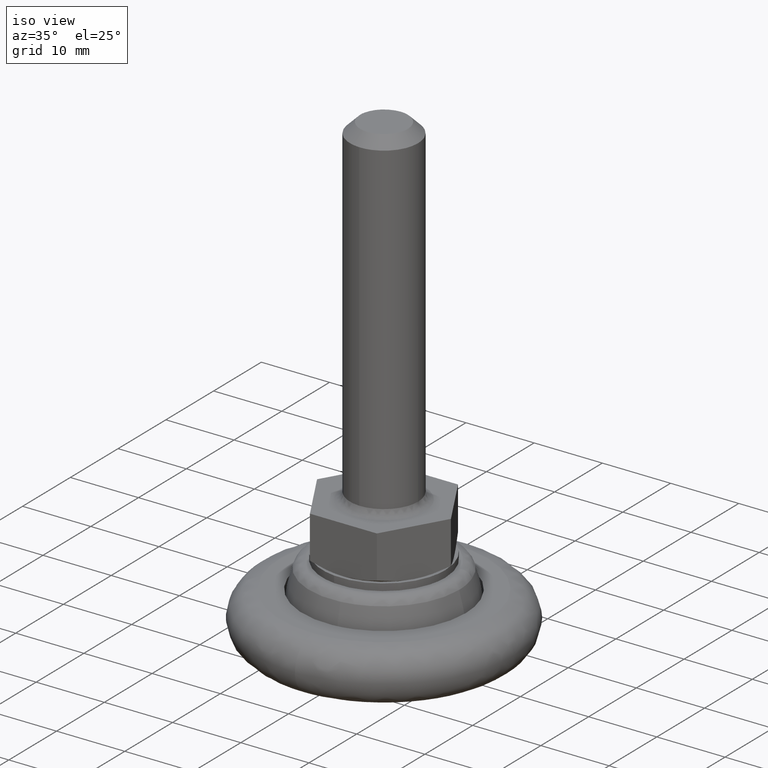
[diagram: clean part render]
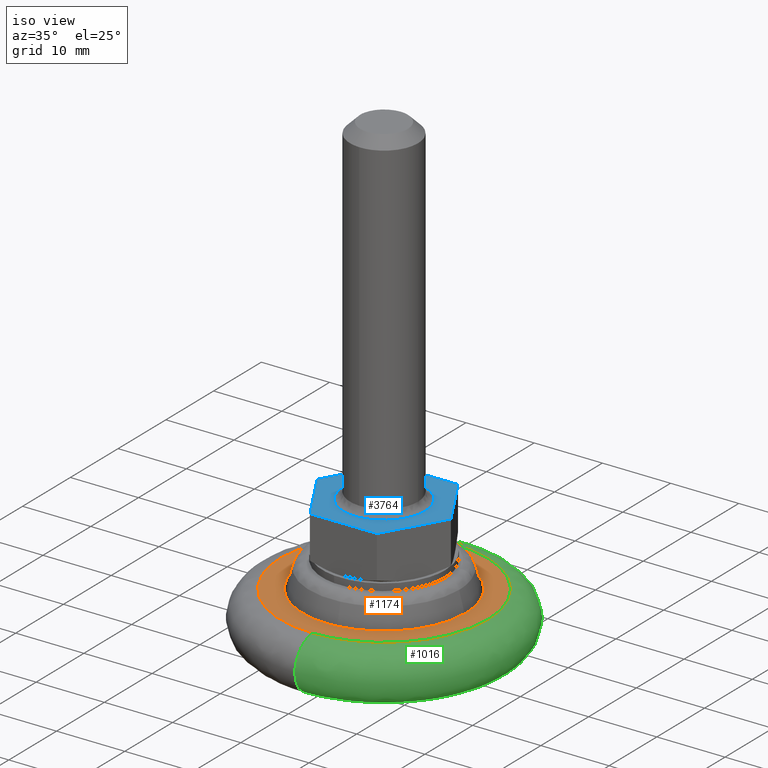
[diagram: same view with three faces highlighted in distinct colors, each labeled with its STEP entity id]
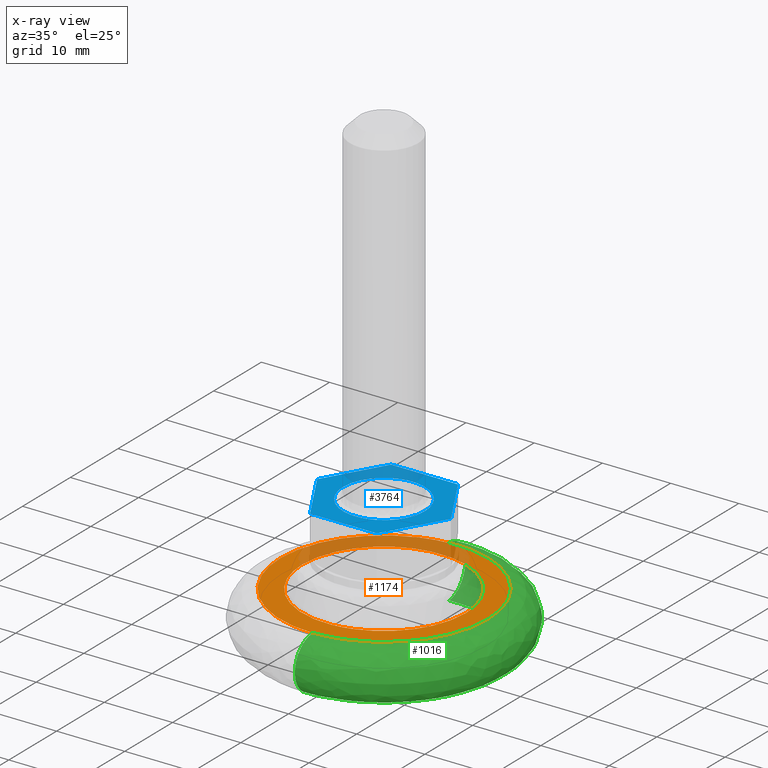
[diagram: x-ray of the same camera — body ghosted, the three highlighted faces saturated]
A machine part, iso view with three faces highlighted in distinct colors.
The next image is the same camera in x-ray (body ghosted, the three faces saturated) — at least one of them is partly hidden behind the body in this view.
Their STEP definitions:

[orange] entity #1174 — the highlighted face is a freeform B-spline surface patch.
#739=CARTESIAN_POINT('',(0.732572937453758,-11.977618164360520,7.600000000000000));
#740=VERTEX_POINT('',#739);
#746=CARTESIAN_POINT('',(12.0,0.0,7.600000000000000));
#747=VERTEX_POINT('',#746);
#748=CARTESIAN_POINT('',(12.0,0.0,7.600000000000000));
#749=CARTESIAN_POINT('',(11.999999999999998,-11.288481807912765,7.599999999999999));
#750=CARTESIAN_POINT('',(0.732572937453758,-11.977618164360521,7.600000000000000));
#758=(BOUNDED_CURVE()B_SPLINE_CURVE(2,(#748,#749,#750),.UNSPECIFIED.,.F.,.U.)B_SPLINE_CURVE_WITH_KNOTS((3,3),(0.500000000000000,0.739333099629289),.UNSPECIFIED.)CURVE()GEOMETRIC_REPRESENTATION_ITEM()RATIONAL_B_SPLINE_CURVE((1.0,0.719603832323908,0.976072336120558))REPRESENTATION_ITEM(''));
#759=EDGE_CURVE('',#747,#740,#758,.T.);
#761=CARTESIAN_POINT('',(-1.416392585677551,11.916116483271750,7.600000000000000));
#762=VERTEX_POINT('',#761);
#763=CARTESIAN_POINT('',(-1.416392585677552,11.916116483271745,7.600000000000000));
#764=CARTESIAN_POINT('',(-0.710680224359546,11.999999999999996,7.600000000000001));
#765=CARTESIAN_POINT('',(0.0,12.0,7.600000000000000));
#766=CARTESIAN_POINT('',(12.0,12.0,7.600000000000000));
#767=CARTESIAN_POINT('',(12.0,0.0,7.600000000000000));
#775=(BOUNDED_CURVE()B_SPLINE_CURVE(2,(#763,#764,#765,#766,#767),.UNSPECIFIED.,.F.,.U.)B_SPLINE_CURVE_WITH_KNOTS((3,2,3),(0.229562732070054,0.250000000000000,0.500000000000000),.UNSPECIFIED.)CURVE()GEOMETRIC_REPRESENTATION_ITEM()RATIONAL_B_SPLINE_CURVE((0.956027260965737,0.976056251248981,1.0,0.707106781186548,1.0))REPRESENTATION_ITEM(''));
#776=EDGE_CURVE('',#762,#747,#775,.T.);
#824=CARTESIAN_POINT('',(-12.0,0.0,7.600000000000000));
#825=VERTEX_POINT('',#824);
#826=CARTESIAN_POINT('',(-12.0,0.0,7.600000000000000));
#827=CARTESIAN_POINT('',(-12.0,10.658110731796928,7.599999999999999));
#828=CARTESIAN_POINT('',(-1.416392585677552,11.916116483271745,7.600000000000000));
#836=(BOUNDED_CURVE()B_SPLINE_CURVE(2,(#826,#827,#828),.UNSPECIFIED.,.F.,.U.)B_SPLINE_CURVE_WITH_KNOTS((3,3),(0.0,0.229562732070054),.UNSPECIFIED.)CURVE()GEOMETRIC_REPRESENTATION_ITEM()RATIONAL_B_SPLINE_CURVE((1.0,0.731050529937566,0.956027260965737))REPRESENTATION_ITEM(''));
#837=EDGE_CURVE('',#825,#762,#836,.T.);
#839=CARTESIAN_POINT('',(0.732572937453758,-11.977618164360521,7.600000000000000));
#840=CARTESIAN_POINT('',(0.366628377730736,-12.000000000000005,7.600000000000000));
#841=CARTESIAN_POINT('',(0.0,-12.0,7.600000000000000));
#842=CARTESIAN_POINT('',(-12.0,-12.0,7.600000000000000));
#843=CARTESIAN_POINT('',(-12.0,0.0,7.600000000000000));
#851=(BOUNDED_CURVE()B_SPLINE_CURVE(2,(#839,#840,#841,#842,#843),.UNSPECIFIED.,.F.,.U.)B_SPLINE_CURVE_WITH_KNOTS((3,2,3),(0.739333099629289,0.750000000000000,1.0),.UNSPECIFIED.)CURVE()GEOMETRIC_REPRESENTATION_ITEM()RATIONAL_B_SPLINE_CURVE((0.976072336120558,0.987502948862640,1.0,0.707106781186548,1.0))REPRESENTATION_ITEM(''));
#852=EDGE_CURVE('',#740,#825,#851,.T.);
#935=CARTESIAN_POINT('',(-1.059945424126306,15.162998243351630,7.599999999999999));
#936=VERTEX_POINT('',#935);
#952=CARTESIAN_POINT('',(15.199999999999999,0.0,7.600000000000000));
#953=VERTEX_POINT('',#952);
#954=CARTESIAN_POINT('',(-1.059945424126305,15.162998243351634,7.599999999999999));
#955=CARTESIAN_POINT('',(-0.530618561406766,15.200000000000005,7.600000000000001));
#956=CARTESIAN_POINT('',(0.0,15.199999999999999,7.600000000000000));
#957=CARTESIAN_POINT('',(15.199999999999999,15.199999999999999,7.600000000000000));
#958=CARTESIAN_POINT('',(15.199999999999999,0.0,7.600000000000000));
#966=(BOUNDED_CURVE()B_SPLINE_CURVE(2,(#954,#955,#956,#957,#958),.UNSPECIFIED.,.F.,.U.)B_SPLINE_CURVE_WITH_KNOTS((3,2,3),(0.237833686532622,0.250000000000000,0.500000000000000),.UNSPECIFIED.)CURVE()GEOMETRIC_REPRESENTATION_ITEM()RATIONAL_B_SPLINE_CURVE((0.972879876381753,0.985746277149785,1.0,0.707106781186547,1.0))REPRESENTATION_ITEM(''));
#967=EDGE_CURVE('',#936,#953,#966,.T.);
#969=CARTESIAN_POINT('',(0.191003806454442,-15.198799873360951,7.599999999999998));
#970=VERTEX_POINT('',#969);
#971=CARTESIAN_POINT('',(15.199999999999999,0.0,7.600000000000000));
#972=CARTESIAN_POINT('',(15.199999999999999,-15.010181334178274,7.600000000000000));
#973=CARTESIAN_POINT('',(0.191003806454442,-15.198799873360949,7.599999999999998));
#981=(BOUNDED_CURVE()B_SPLINE_CURVE(2,(#971,#972,#973),.UNSPECIFIED.,.F.,.U.)B_SPLINE_CURVE_WITH_KNOTS((3,3),(0.500000000000000,0.747784295916891),.UNSPECIFIED.)CURVE()GEOMETRIC_REPRESENTATION_ITEM()RATIONAL_B_SPLINE_CURVE((1.0,0.709702639989907,0.994854295632879))REPRESENTATION_ITEM(''));
#982=EDGE_CURVE('',#953,#970,#981,.T.);
#1081=CARTESIAN_POINT('',(-15.199999999999999,0.0,7.600000000000000));
#1082=VERTEX_POINT('',#1081);
#1083=CARTESIAN_POINT('',(0.191003806454442,-15.198799873360956,7.599999999999998));
#1084=CARTESIAN_POINT('',(0.095505673685812,-15.200000000000005,7.600000000000000));
#1085=CARTESIAN_POINT('',(0.0,-15.199999999999999,7.600000000000000));
#1086=CARTESIAN_POINT('',(-15.199999999999999,-15.199999999999999,7.600000000000000));
#1087=CARTESIAN_POINT('',(-15.199999999999999,0.0,7.600000000000000));
#1095=(BOUNDED_CURVE()B_SPLINE_CURVE(2,(#1083,#1084,#1085,#1086,#1087),.UNSPECIFIED.,.F.,.U.)B_SPLINE_CURVE_WITH_KNOTS((3,2,3),(0.747784295916890,0.750000000000000,1.0),.UNSPECIFIED.)CURVE()GEOMETRIC_REPRESENTATION_ITEM()RATIONAL_B_SPLINE_CURVE((0.994854295632877,0.997404141196639,1.0,0.707106781186547,1.0))REPRESENTATION_ITEM(''));
#1096=EDGE_CURVE('',#970,#1082,#1095,.T.);
#1098=CARTESIAN_POINT('',(-15.199999999999999,0.0,7.600000000000000));
#1099=CARTESIAN_POINT('',(-15.199999999999994,14.174560078245069,7.600000000000000));
#1100=CARTESIAN_POINT('',(-1.059945424126306,15.162998243351630,7.599999999999999));
#1108=(BOUNDED_CURVE()B_SPLINE_CURVE(2,(#1098,#1099,#1100),.UNSPECIFIED.,.F.,.U.)B_SPLINE_CURVE_WITH_KNOTS((3,3),(0.0,0.237833686532622),.UNSPECIFIED.)CURVE()GEOMETRIC_REPRESENTATION_ITEM()RATIONAL_B_SPLINE_CURVE((1.0,0.721360504036762,0.972879876381753))REPRESENTATION_ITEM(''));
#1109=EDGE_CURVE('',#1082,#936,#1108,.T.);
#1157=CARTESIAN_POINT('',(16.718479941078900,-16.717133454134149,7.600000000000000));
#1158=CARTESIAN_POINT('',(-16.718480756470441,-16.717133454134149,7.600000000000000));
#1159=CARTESIAN_POINT('',(16.718479941078900,16.716598401880990,7.600000000000000));
#1160=CARTESIAN_POINT('',(-16.718480756470441,16.716598401880990,7.600000000000000));
#1161=B_SPLINE_SURFACE_WITH_KNOTS('',1,1,((#1157,#1159),(#1158,#1160)),.UNSPECIFIED.,.F.,.F.,.U.,(2,2),(2,2),(0.0,33.436960697549338),(0.0,33.433731856015143),.UNSPECIFIED.);
#1162=ORIENTED_EDGE('',*,*,#1096,.F.);
#1163=ORIENTED_EDGE('',*,*,#982,.F.);
#1164=ORIENTED_EDGE('',*,*,#967,.F.);
#1165=ORIENTED_EDGE('',*,*,#1109,.F.);
#1166=EDGE_LOOP('',(#1162,#1163,#1164,#1165));
#1167=FACE_OUTER_BOUND('',#1166,.T.);
#1168=ORIENTED_EDGE('',*,*,#759,.T.);
#1169=ORIENTED_EDGE('',*,*,#852,.T.);
#1170=ORIENTED_EDGE('',*,*,#837,.T.);
#1171=ORIENTED_EDGE('',*,*,#776,.T.);
#1172=EDGE_LOOP('',(#1168,#1169,#1170,#1171));
#1173=FACE_BOUND('',#1172,.T.);
#1174=ADVANCED_FACE('',(#1167,#1173),#1161,.F.);

[blue] entity #3764 — the highlighted face is a freeform B-spline surface patch.
#3212=CARTESIAN_POINT('',(-6.0,0.0,19.500000000000000));
#3213=VERTEX_POINT('',#3212);
#3214=CARTESIAN_POINT('',(0.418399509664849,5.985394041298383,19.500000000000000));
#3215=VERTEX_POINT('',#3214);
#3216=CARTESIAN_POINT('',(-6.0,0.0,19.500000000000000));
#3217=CARTESIAN_POINT('',(-6.0,6.0,19.500000000000004));
#3218=CARTESIAN_POINT('',(0.0,6.0,19.500000000000000));
#3219=CARTESIAN_POINT('',(0.209454695581991,6.0,19.500000000000004));
#3220=CARTESIAN_POINT('',(0.418399509664849,5.985394041298383,19.500000000000000));
#3228=(BOUNDED_CURVE()B_SPLINE_CURVE(2,(#3216,#3217,#3218,#3219,#3220),.UNSPECIFIED.,.F.,.U.)B_SPLINE_CURVE_WITH_KNOTS((3,2,3),(0.500000000000000,0.750000000000000,0.762166313483974),.UNSPECIFIED.)CURVE()GEOMETRIC_REPRESENTATION_ITEM()RATIONAL_B_SPLINE_CURVE((1.0,0.707106781186548,1.0,0.985746277130342,0.972879876346651))REPRESENTATION_ITEM(''));
#3229=EDGE_CURVE('',#3213,#3215,#3228,.T.);
#3231=CARTESIAN_POINT('',(5.999526809279066,-0.075389914416651,19.500000000000210));
#3232=VERTEX_POINT('',#3231);
#3233=CARTESIAN_POINT('',(5.999526809279066,-0.075389914416651,19.500000000000213));
#3234=CARTESIAN_POINT('',(5.925077832096324,-6.000000000000001,19.500000000000000));
#3235=CARTESIAN_POINT('',(0.0,-6.0,19.500000000000000));
#3236=CARTESIAN_POINT('',(-6.0,-6.0,19.500000000000004));
#3237=CARTESIAN_POINT('',(-6.0,0.0,19.500000000000000));
#3245=(BOUNDED_CURVE()B_SPLINE_CURVE(2,(#3233,#3234,#3235,#3236,#3237),.UNSPECIFIED.,.F.,.U.)B_SPLINE_CURVE_WITH_KNOTS((3,2,3),(0.002215518502723,0.250000000000000,0.500000000000000),.UNSPECIFIED.)CURVE()GEOMETRIC_REPRESENTATION_ITEM()RATIONAL_B_SPLINE_CURVE((0.994854722767247,0.709702422568961,1.0,0.707106781186548,1.0))REPRESENTATION_ITEM(''));
#3246=EDGE_CURVE('',#3232,#3213,#3245,.T.);
#3298=CARTESIAN_POINT('',(6.0,0.0,19.500000000000000));
#3299=VERTEX_POINT('',#3298);
#3300=CARTESIAN_POINT('',(0.418399509664849,5.985394041298383,19.499999999999996));
#3301=CARTESIAN_POINT('',(6.0,5.595221082976554,19.499999999999993));
#3302=CARTESIAN_POINT('',(6.0,0.0,19.500000000000000));
#3310=(BOUNDED_CURVE()B_SPLINE_CURVE(2,(#3300,#3301,#3302),.UNSPECIFIED.,.F.,.U.)B_SPLINE_CURVE_WITH_KNOTS((3,3),(0.762166313483973,1.0),.UNSPECIFIED.)CURVE()GEOMETRIC_REPRESENTATION_ITEM()RATIONAL_B_SPLINE_CURVE((0.972879876346652,0.721360504056205,1.0))REPRESENTATION_ITEM(''));
#3311=EDGE_CURVE('',#3215,#3299,#3310,.T.);
#3317=CARTESIAN_POINT('',(6.0,0.0,19.500000000000000));
#3318=CARTESIAN_POINT('',(6.0,-0.037696442216262,19.500000000000004));
#3319=CARTESIAN_POINT('',(5.999526809279066,-0.075389914416651,19.500000000000213));
#3327=(BOUNDED_CURVE()B_SPLINE_CURVE(2,(#3317,#3318,#3319),.UNSPECIFIED.,.F.,.U.)B_SPLINE_CURVE_WITH_KNOTS((3,3),(0.0,0.002215518502723),.UNSPECIFIED.)CURVE()GEOMETRIC_REPRESENTATION_ITEM()RATIONAL_B_SPLINE_CURVE((1.0,0.997404358617587,0.994854722767247))REPRESENTATION_ITEM(''));
#3328=EDGE_CURVE('',#3299,#3232,#3327,.T.);
#3709=CARTESIAN_POINT('',(-10.795468732231891,-9.349149967050700,19.500000000000000));
#3710=CARTESIAN_POINT('',(10.795468434252140,-9.349149967050700,19.500000000000000));
#3711=CARTESIAN_POINT('',(-10.795468732231891,9.349150423026234,19.500000000000000));
#3712=CARTESIAN_POINT('',(10.795468434252140,9.349150423026234,19.500000000000000));
#3713=B_SPLINE_SURFACE_WITH_KNOTS('',1,1,((#3709,#3711),(#3710,#3712)),.UNSPECIFIED.,.F.,.F.,.U.,(2,2),(2,2),(0.0,21.590937166484022),(0.0,18.698300390076930),.UNSPECIFIED.);
#3714=CARTESIAN_POINT('',(-4.907478000000000,-8.500000000000000,19.500000000000000));
#3715=VERTEX_POINT('',#3714);
#3716=CARTESIAN_POINT('',(-9.814954999999999,0.0,19.500000000000000));
#3717=VERTEX_POINT('',#3716);
#3718=CARTESIAN_POINT('',(-4.907478000000000,-8.500000000000000,19.500000000000000));
#3719=CARTESIAN_POINT('',(-9.814954999999999,0.0,19.500000000000000));
#3720=QUASI_UNIFORM_CURVE('',1,(#3718,#3719),.UNSPECIFIED.,.F.,.U.);
#3721=EDGE_CURVE('',#3715,#3717,#3720,.T.);
#3722=ORIENTED_EDGE('',*,*,#3721,.F.);
#3723=CARTESIAN_POINT('',(4.907477000000000,-8.500000000000000,19.500000000000000));
#3724=VERTEX_POINT('',#3723);
#3725=CARTESIAN_POINT('',(4.907477000000000,-8.500000000000000,19.500000000000000));
#3726=CARTESIAN_POINT('',(-4.907478000000000,-8.500000000000000,19.500000000000000));
#3727=QUASI_UNIFORM_CURVE('',1,(#3725,#3726),.UNSPECIFIED.,.F.,.U.);
#3728=EDGE_CURVE('',#3724,#3715,#3727,.T.);
#3729=ORIENTED_EDGE('',*,*,#3728,.F.);
#3730=CARTESIAN_POINT('',(9.814954000000000,0.0,19.500000000000000));
#3731=VERTEX_POINT('',#3730);
#3732=CARTESIAN_POINT('',(9.814954000000000,0.0,19.500000000000000));
#3733=CARTESIAN_POINT('',(4.907477000000000,-8.500000000000000,19.500000000000000));
#3734=QUASI_UNIFORM_CURVE('',1,(#3732,#3733),.UNSPECIFIED.,.F.,.U.);
#3735=EDGE_CURVE('',#3731,#3724,#3734,.T.);
#3736=ORIENTED_EDGE('',*,*,#3735,.F.);
#3737=CARTESIAN_POINT('',(4.907477000000000,8.500000000000000,19.500000000000000));
#3738=VERTEX_POINT('',#3737);
#3739=CARTESIAN_POINT('',(4.907477000000000,8.500000000000000,19.500000000000000));
#3740=CARTESIAN_POINT('',(9.814954000000000,0.0,19.500000000000000));
#3741=QUASI_UNIFORM_CURVE('',1,(#3739,#3740),.UNSPECIFIED.,.F.,.U.);
#3742=EDGE_CURVE('',#3738,#3731,#3741,.T.);
#3743=ORIENTED_EDGE('',*,*,#3742,.F.);
#3744=CARTESIAN_POINT('',(-4.907478000000000,8.500000000000000,19.500000000000000));
#3745=VERTEX_POINT('',#3744);
#3746=CARTESIAN_POINT('',(-4.907478000000000,8.500000000000000,19.500000000000000));
#3747=CARTESIAN_POINT('',(4.907477000000000,8.500000000000000,19.500000000000000));
#3748=QUASI_UNIFORM_CURVE('',1,(#3746,#3747),.UNSPECIFIED.,.F.,.U.);
#3749=EDGE_CURVE('',#3745,#3738,#3748,.T.);
#3750=ORIENTED_EDGE('',*,*,#3749,.F.);
#3751=CARTESIAN_POINT('',(-9.814954999999999,0.0,19.500000000000000));
#3752=CARTESIAN_POINT('',(-4.907478000000000,8.500000000000000,19.500000000000000));
#3753=QUASI_UNIFORM_CURVE('',1,(#3751,#3752),.UNSPECIFIED.,.F.,.U.);
#3754=EDGE_CURVE('',#3717,#3745,#3753,.T.);
#3755=ORIENTED_EDGE('',*,*,#3754,.F.);
#3756=EDGE_LOOP('',(#3722,#3729,#3736,#3743,#3750,#3755));
#3757=FACE_OUTER_BOUND('',#3756,.T.);
#3758=ORIENTED_EDGE('',*,*,#3328,.T.);
#3759=ORIENTED_EDGE('',*,*,#3246,.T.);
#3760=ORIENTED_EDGE('',*,*,#3229,.T.);
#3761=ORIENTED_EDGE('',*,*,#3311,.T.);
#3762=EDGE_LOOP('',(#3758,#3759,#3760,#3761));
#3763=FACE_BOUND('',#3762,.T.);
#3764=ADVANCED_FACE('',(#3757,#3763),#3713,.T.);

[green] entity #1016 — the highlighted face is a freeform B-spline surface patch.
#873=CARTESIAN_POINT('',(-1.022425205984638,14.626266174334944,7.561716485912071));
#874=CARTESIAN_POINT('',(-0.603828155882195,14.655527516230014,7.561716485912070));
#875=CARTESIAN_POINT('',(-0.184242750329001,14.660800459500111,7.561716485912070));
#876=CARTESIAN_POINT('',(14.476557709171106,14.845043209829115,7.561716485912069));
#877=CARTESIAN_POINT('',(14.660800459500111,0.184242750329002,7.561716485912070));
#878=CARTESIAN_POINT('',(14.845043209829115,-14.476557709171106,7.561716485912069));
#879=CARTESIAN_POINT('',(0.184242750328990,-14.660800459500111,7.561716485912070));
#880=CARTESIAN_POINT('',(-1.324930733887300,18.953747876090375,8.182190752186457));
#881=CARTESIAN_POINT('',(-0.782483136205889,18.991666787874475,8.182190752186459));
#882=CARTESIAN_POINT('',(-0.238754757783706,18.998499839872501,8.182190752186457));
#883=CARTESIAN_POINT('',(18.759745082088795,19.237254597656211,8.182190752186461));
#884=CARTESIAN_POINT('',(18.998499839872501,0.238754757783707,8.182190752186457));
#885=CARTESIAN_POINT('',(19.237254597656211,-18.759745082088795,8.182190752186461));
#886=CARTESIAN_POINT('',(0.238754757783692,-18.998499839872501,8.182190752186457));
#887=CARTESIAN_POINT('',(-1.324930733887300,18.953747876090382,3.800000000000001));
#888=CARTESIAN_POINT('',(-0.782483136205889,18.991666787874479,3.800000000000000));
#889=CARTESIAN_POINT('',(-0.238754757783706,18.998499839872501,3.800000000000000));
#890=CARTESIAN_POINT('',(18.759745082088791,19.237254597656204,3.800000000000000));
#891=CARTESIAN_POINT('',(18.998499839872501,0.238754757783707,3.800000000000000));
#892=CARTESIAN_POINT('',(19.237254597656204,-18.759745082088791,3.800000000000000));
#893=CARTESIAN_POINT('',(0.238754757783692,-18.998499839872501,3.800000000000000));
#894=CARTESIAN_POINT('',(-1.324930733887300,18.953747876090386,-0.582190904457931));
#895=CARTESIAN_POINT('',(-0.782483136205889,18.991666787874475,-0.582190904457932));
#896=CARTESIAN_POINT('',(-0.238754757783706,18.998499839872498,-0.582190904457931));
#897=CARTESIAN_POINT('',(18.759745082088788,19.237254597656204,-0.582190904457932));
#898=CARTESIAN_POINT('',(18.998499839872498,0.238754757783707,-0.582190904457931));
#899=CARTESIAN_POINT('',(19.237254597656204,-18.759745082088788,-0.582190904457932));
#900=CARTESIAN_POINT('',(0.238754757783692,-18.998499839872498,-0.582190904457931));
#901=CARTESIAN_POINT('',(-1.022425196961546,14.626266045255445,0.038283532595349));
#902=CARTESIAN_POINT('',(-0.603828150553300,14.655527386892283,0.038283532595349));
#903=CARTESIAN_POINT('',(-0.184242748703025,14.660800330115835,0.038283532595349));
#904=CARTESIAN_POINT('',(14.476557581412804,14.845043078818863,0.038283532595349));
#905=CARTESIAN_POINT('',(14.660800330115835,0.184242748703026,0.038283532595349));
#906=CARTESIAN_POINT('',(14.845043078818863,-14.476557581412804,0.038283532595349));
#907=CARTESIAN_POINT('',(0.184242748703013,-14.660800330115835,0.038283532595349));
#915=(BOUNDED_SURFACE()B_SPLINE_SURFACE(2,2,((#873,#880,#887,#894,#901),(#874,#881,#888,#895,#902),(#875,#882,#889,#896,#903),(#876,#883,#890,#897,#904),(#877,#884,#891,#898,#905),(#878,#885,#892,#899,#906),(#879,#886,#893,#900,#907)),.UNSPECIFIED.,.F.,.F.,.U.)B_SPLINE_SURFACE_WITH_KNOTS((3,2,2,3),(3,2,3),(0.0,1.259208028738707,32.739438769093923,64.219669509449119),(0.0,6.938198029332217,13.876396215866340),.UNSPECIFIED.)GEOMETRIC_REPRESENTATION_ITEM()RATIONAL_B_SPLINE_SURFACE(((0.968327506107734,0.637387003495908,0.977505821353428,0.637386995789681,0.968327521104273),(0.979004762546226,0.644415146808952,0.988284282420452,0.644415139017753,0.979004777708125),(0.990610475103886,0.652054432385271,1.0,0.652054424501710,0.990610490445522),(0.700467384460385,0.461072110842370,0.707106781186548,0.461072105267851,0.700467395308560),(0.990610475103886,0.652054432385271,1.0,0.652054424501710,0.990610490445522),(0.700467384460385,0.461072110842370,0.707106781186548,0.461072105267851,0.700467395308560),(0.990610475103886,0.652054432385271,1.0,0.652054424501710,0.990610490445522)))REPRESENTATION_ITEM('')SURFACE());
#916=CARTESIAN_POINT('',(-1.059945424074574,15.162998242946671,5.467600E-016));
#917=VERTEX_POINT('',#916);
#918=CARTESIAN_POINT('',(15.199999999999999,0.0,0.0));
#919=VERTEX_POINT('',#918);
#920=CARTESIAN_POINT('',(-1.059945424074574,15.162998242946674,5.467600E-016));
#921=CARTESIAN_POINT('',(-0.530618561383370,15.199999999999998,0.0));
#922=CARTESIAN_POINT('',(0.0,15.199999999999999,0.0));
#923=CARTESIAN_POINT('',(15.199999999999999,15.199999999999999,0.0));
#924=CARTESIAN_POINT('',(15.199999999999999,0.0,0.0));
#932=(BOUNDED_CURVE()B_SPLINE_CURVE(2,(#920,#921,#922,#923,#924),.UNSPECIFIED.,.F.,.U.)B_SPLINE_CURVE_WITH_KNOTS((3,2,3),(0.237833686533151,0.250000000000000,0.500000000000000),.UNSPECIFIED.)CURVE()GEOMETRIC_REPRESENTATION_ITEM()RATIONAL_B_SPLINE_CURVE((0.972879876382872,0.985746277150405,1.0,0.707106781186547,1.0))REPRESENTATION_ITEM(''));
#933=EDGE_CURVE('',#917,#919,#932,.T.);
#934=ORIENTED_EDGE('',*,*,#933,.F.);
#935=CARTESIAN_POINT('',(-1.059945424126306,15.162998243351630,7.599999999999999));
#936=VERTEX_POINT('',#935);
#937=CARTESIAN_POINT('',(-1.059945424126306,15.162998243351634,7.599999999999999));
#938=CARTESIAN_POINT('',(-1.324931779933404,18.953747802968209,7.599999998025580));
#939=CARTESIAN_POINT('',(-1.324931779933406,18.953747802968213,3.800000000000000));
#940=CARTESIAN_POINT('',(-1.324931779933404,18.953747802968209,1.159252E-009));
#941=CARTESIAN_POINT('',(-1.059945424074574,15.162998242946667,5.467600E-016));
#949=(BOUNDED_CURVE()B_SPLINE_CURVE(2,(#937,#938,#939,#940,#941),.UNSPECIFIED.,.F.,.U.)B_SPLINE_CURVE_WITH_KNOTS((3,2,3),(-3.793812488797441,-2.0,-0.206187510939486),.UNSPECIFIED.)CURVE()GEOMETRIC_REPRESENTATION_ITEM()RATIONAL_B_SPLINE_CURVE((0.913747049951404,0.668278775007489,0.977505800795127,0.668278774962139,0.913747050023403))REPRESENTATION_ITEM(''));
#950=EDGE_CURVE('',#936,#917,#949,.T.);
#951=ORIENTED_EDGE('',*,*,#950,.F.);
#952=CARTESIAN_POINT('',(15.199999999999999,0.0,7.600000000000000));
#953=VERTEX_POINT('',#952);
#954=CARTESIAN_POINT('',(-1.059945424126305,15.162998243351634,7.599999999999999));
#955=CARTESIAN_POINT('',(-0.530618561406766,15.200000000000005,7.600000000000001));
#956=CARTESIAN_POINT('',(0.0,15.199999999999999,7.600000000000000));
#957=CARTESIAN_POINT('',(15.199999999999999,15.199999999999999,7.600000000000000));
#958=CARTESIAN_POINT('',(15.199999999999999,0.0,7.600000000000000));
#966=(BOUNDED_CURVE()B_SPLINE_CURVE(2,(#954,#955,#956,#957,#958),.UNSPECIFIED.,.F.,.U.)B_SPLINE_CURVE_WITH_KNOTS((3,2,3),(0.237833686532622,0.250000000000000,0.500000000000000),.UNSPECIFIED.)CURVE()GEOMETRIC_REPRESENTATION_ITEM()RATIONAL_B_SPLINE_CURVE((0.972879876381753,0.985746277149785,1.0,0.707106781186547,1.0))REPRESENTATION_ITEM(''));
#967=EDGE_CURVE('',#936,#953,#966,.T.);
#968=ORIENTED_EDGE('',*,*,#967,.T.);
#969=CARTESIAN_POINT('',(0.191003806454442,-15.198799873360951,7.599999999999998));
#970=VERTEX_POINT('',#969);
#971=CARTESIAN_POINT('',(15.199999999999999,0.0,7.600000000000000));
#972=CARTESIAN_POINT('',(15.199999999999999,-15.010181334178274,7.600000000000000));
#973=CARTESIAN_POINT('',(0.191003806454442,-15.198799873360949,7.599999999999998));
#981=(BOUNDED_CURVE()B_SPLINE_CURVE(2,(#971,#972,#973),.UNSPECIFIED.,.F.,.U.)B_SPLINE_CURVE_WITH_KNOTS((3,3),(0.500000000000000,0.747784295916891),.UNSPECIFIED.)CURVE()GEOMETRIC_REPRESENTATION_ITEM()RATIONAL_B_SPLINE_CURVE((1.0,0.709702639989907,0.994854295632879))REPRESENTATION_ITEM(''));
#982=EDGE_CURVE('',#953,#970,#981,.T.);
#983=ORIENTED_EDGE('',*,*,#982,.T.);
#984=CARTESIAN_POINT('',(0.191003806413205,-15.198799872854950,5.641534E-016));
#985=VERTEX_POINT('',#984);
#986=CARTESIAN_POINT('',(0.191003806454442,-15.198799873360953,7.599999999999998));
#987=CARTESIAN_POINT('',(0.238754757783705,-18.998499839872501,7.599999997068615));
#988=CARTESIAN_POINT('',(0.238754757783704,-18.998499839872501,3.800000000000000));
#989=CARTESIAN_POINT('',(0.238754757783705,-18.998499839872505,1.918413E-009));
#990=CARTESIAN_POINT('',(0.191003806413205,-15.198799872854947,5.641534E-016));
#998=(BOUNDED_CURVE()B_SPLINE_CURVE(2,(#986,#987,#988,#989,#990),.UNSPECIFIED.,.F.,.U.)B_SPLINE_CURVE_WITH_KNOTS((3,2,3),(-3.793812488488603,-2.0,-0.206187511184485),.UNSPECIFIED.)CURVE()GEOMETRIC_REPRESENTATION_ITEM()RATIONAL_B_SPLINE_CURVE((0.934774043410910,0.683657093919171,1.0,0.683657093861519,0.934774043502439))REPRESENTATION_ITEM(''));
#999=EDGE_CURVE('',#970,#985,#998,.T.);
#1000=ORIENTED_EDGE('',*,*,#999,.T.);
#1001=CARTESIAN_POINT('',(15.199999999999999,0.0,0.0));
#1002=CARTESIAN_POINT('',(15.200000000000003,-15.010181334247068,0.0));
#1003=CARTESIAN_POINT('',(0.191003806413205,-15.198799872854948,5.641534E-016));
#1011=(BOUNDED_CURVE()B_SPLINE_CURVE(2,(#1001,#1002,#1003),.UNSPECIFIED.,.F.,.U.)B_SPLINE_CURVE_WITH_KNOTS((3,3),(0.500000000000000,0.747784295917697),.UNSPECIFIED.)CURVE()GEOMETRIC_REPRESENTATION_ITEM()RATIONAL_B_SPLINE_CURVE((1.0,0.709702639988963,0.994854295634734))REPRESENTATION_ITEM(''));
#1012=EDGE_CURVE('',#919,#985,#1011,.T.);
#1013=ORIENTED_EDGE('',*,*,#1012,.F.);
#1014=EDGE_LOOP('',(#934,#951,#968,#983,#1000,#1013));
#1015=FACE_OUTER_BOUND('',#1014,.T.);
#1016=ADVANCED_FACE('',(#1015),#915,.T.);